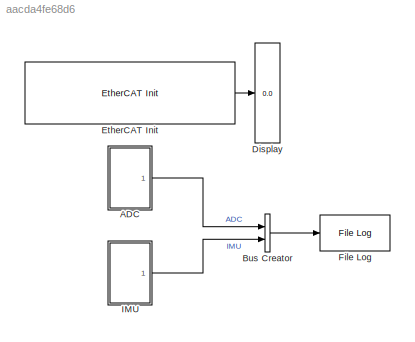
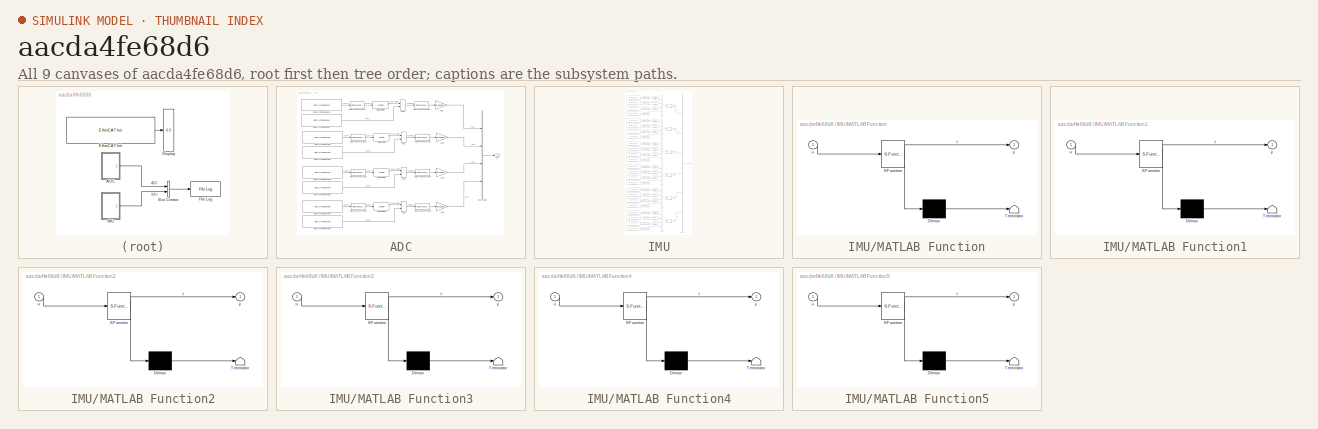
[diagram: thumbnail index - all 9 canvases of the model, root first then tree order]
MODEL slx_aacda4fe68d6
KIND model
CONFIG AbsTol = auto
CONFIG EnableMultiTasking = off
CONFIG FixedStep = Ts
CONFIG MaxStep = auto
CONFIG MinStep = auto
CONFIG RelTol = 1e-3
CONFIG SampleTimeConstraint = Unconstrained
CONFIG SolverName = FixedStepAuto
CONFIG StartTime = 0.0
CONFIG StopTime = 3660
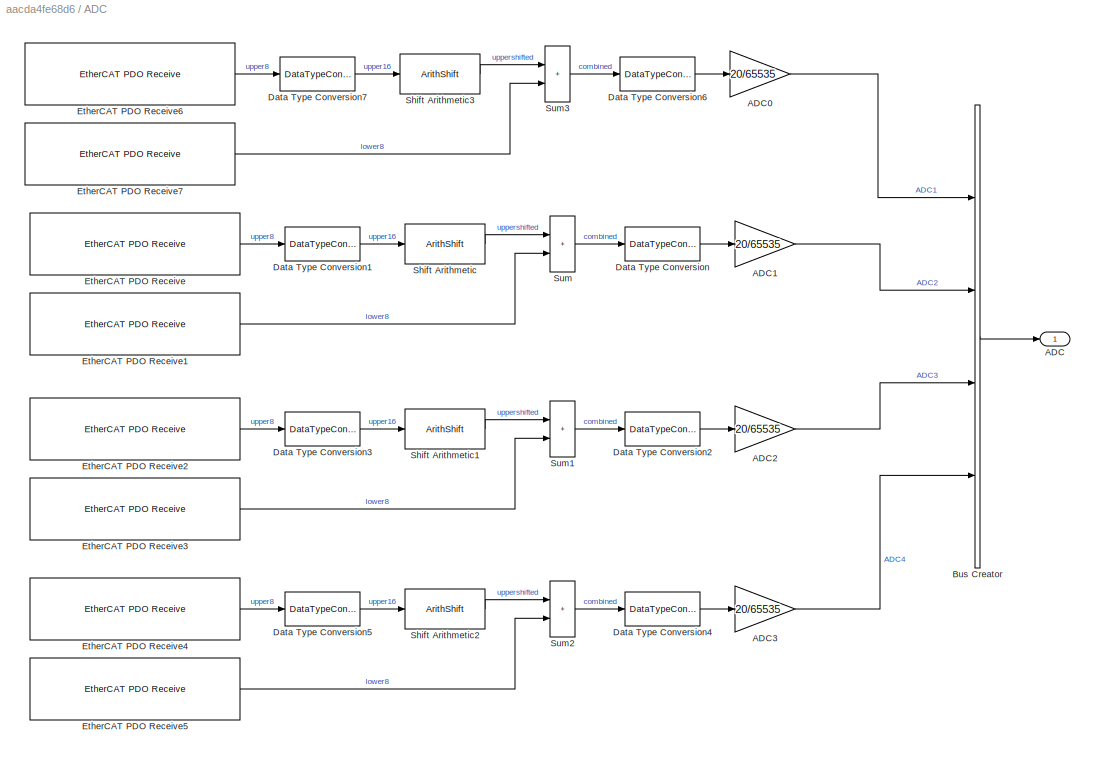
BLOCK [SubSystem] ADC
  Ports = [0, 1]
  RequestExecContextInheritance = off
BLOCK [Outport] ADC/ADC
BLOCK [Gain] ADC/ADC0
  Gain = 20/65535
  OutDataTypeStr = double
BLOCK [Gain] ADC/ADC1
  Gain = 20/65535
  OutDataTypeStr = double
BLOCK [Gain] ADC/ADC2
  Gain = 20/65535
  OutDataTypeStr = double
BLOCK [Gain] ADC/ADC3
  Gain = 20/65535
  OutDataTypeStr = double
BLOCK [BusCreator] ADC/Bus Creator
  DisplayOption = bar
  InheritFromInputs = on
  Inputs = ADC1,ADC2,ADC3,ADC4
  Ports = [4, 1]
BLOCK [DataTypeConversion] ADC/Data Type Conversion
  OutDataTypeStr = int16
  RndMeth = Floor
  SaturateOnIntegerOverflow = off
BLOCK [DataTypeConversion] ADC/Data Type Conversion1
  OutDataTypeStr = uint16
  RndMeth = Floor
  SaturateOnIntegerOverflow = off
BLOCK [DataTypeConversion] ADC/Data Type Conversion2
  OutDataTypeStr = int16
  RndMeth = Floor
  SaturateOnIntegerOverflow = off
BLOCK [DataTypeConversion] ADC/Data Type Conversion3
  OutDataTypeStr = uint16
  RndMeth = Floor
  SaturateOnIntegerOverflow = off
BLOCK [DataTypeConversion] ADC/Data Type Conversion4
  OutDataTypeStr = int16
  RndMeth = Floor
  SaturateOnIntegerOverflow = off
BLOCK [DataTypeConversion] ADC/Data Type Conversion5
  OutDataTypeStr = uint16
  RndMeth = Floor
  SaturateOnIntegerOverflow = off
BLOCK [DataTypeConversion] ADC/Data Type Conversion6
  OutDataTypeStr = int16
  RndMeth = Floor
  SaturateOnIntegerOverflow = off
BLOCK [DataTypeConversion] ADC/Data Type Conversion7
  OutDataTypeStr = uint16
  RndMeth = Floor
  SaturateOnIntegerOverflow = off
BLOCK [Reference] ADC/EtherCAT PDO Receive  REF=slrealtimeethercatlib/EtherCAT PDO Receive
  Ports = [0, 1]
  Priority = 2
  SourceBlock = slrealtimeethercatlib/EtherCAT PDO Receive
  SourceProductBaseCode = XP
  SourceType = ethercat_pdo_receive
BLOCK [Reference] ADC/EtherCAT PDO Receive1  REF=slrealtimeethercatlib/EtherCAT PDO Receive
  Ports = [0, 1]
  Priority = 2
  SourceBlock = slrealtimeethercatlib/EtherCAT PDO Receive
  SourceProductBaseCode = XP
  SourceType = ethercat_pdo_receive
BLOCK [Reference] ADC/EtherCAT PDO Receive2  REF=slrealtimeethercatlib/EtherCAT PDO Receive
  Ports = [0, 1]
  Priority = 2
  SourceBlock = slrealtimeethercatlib/EtherCAT PDO Receive
  SourceProductBaseCode = XP
  SourceType = ethercat_pdo_receive
BLOCK [Reference] ADC/EtherCAT PDO Receive3  REF=slrealtimeethercatlib/EtherCAT PDO Receive
  Ports = [0, 1]
  Priority = 2
  SourceBlock = slrealtimeethercatlib/EtherCAT PDO Receive
  SourceProductBaseCode = XP
  SourceType = ethercat_pdo_receive
BLOCK [Reference] ADC/EtherCAT PDO Receive4  REF=slrealtimeethercatlib/EtherCAT PDO Receive
  Ports = [0, 1]
  Priority = 2
  SourceBlock = slrealtimeethercatlib/EtherCAT PDO Receive
  SourceProductBaseCode = XP
  SourceType = ethercat_pdo_receive
BLOCK [Reference] ADC/EtherCAT PDO Receive5  REF=slrealtimeethercatlib/EtherCAT PDO Receive
  Ports = [0, 1]
  Priority = 2
  SourceBlock = slrealtimeethercatlib/EtherCAT PDO Receive
  SourceProductBaseCode = XP
  SourceType = ethercat_pdo_receive
BLOCK [Reference] ADC/EtherCAT PDO Receive6  REF=slrealtimeethercatlib/EtherCAT PDO Receive
  Ports = [0, 1]
  Priority = 2
  SourceBlock = slrealtimeethercatlib/EtherCAT PDO Receive
  SourceProductBaseCode = XP
  SourceType = ethercat_pdo_receive
BLOCK [Reference] ADC/EtherCAT PDO Receive7  REF=slrealtimeethercatlib/EtherCAT PDO Receive
  Ports = [0, 1]
  Priority = 2
  SourceBlock = slrealtimeethercatlib/EtherCAT PDO Receive
  SourceProductBaseCode = XP
  SourceType = ethercat_pdo_receive
BLOCK [ArithShift] ADC/Shift Arithmetic
  BitShiftDirection = Left
  BitShiftNumber = 8
  InputPortMap = u0
  Ports = [1, 1]
BLOCK [ArithShift] ADC/Shift Arithmetic1
  BitShiftDirection = Left
  BitShiftNumber = 8
  InputPortMap = u0
  Ports = [1, 1]
BLOCK [ArithShift] ADC/Shift Arithmetic2
  BitShiftDirection = Left
  BitShiftNumber = 8
  InputPortMap = u0
  Ports = [1, 1]
BLOCK [ArithShift] ADC/Shift Arithmetic3
  BitShiftDirection = Left
  BitShiftNumber = 8
  InputPortMap = u0
  Ports = [1, 1]
BLOCK [Sum] ADC/Sum
  IconShape = rectangular
  Inputs = |++
  Ports = [2, 1]
BLOCK [Sum] ADC/Sum1
  IconShape = rectangular
  Inputs = |++
  Ports = [2, 1]
BLOCK [Sum] ADC/Sum2
  IconShape = rectangular
  Inputs = |++
  Ports = [2, 1]
BLOCK [Sum] ADC/Sum3
  IconShape = rectangular
  Inputs = |++
  Ports = [2, 1]
BLOCK [BusCreator] Bus Creator
  DisplayOption = bar
  InheritFromInputs = on
  Inputs = ADC,IMU
  Ports = [2, 1]
BLOCK [Display] Display
  Decimation = 1
  Ports = [1]
BLOCK [Reference] EtherCAT Init  REF=slrealtimeethercatlib/EtherCAT Init
  Ports = [0, 1]
  Priority = 0
  SourceBlock = slrealtimeethercatlib/EtherCAT Init
  SourceProductBaseCode = XP
  SourceType = ethercatinit
BLOCK [Reference] File Log  REF=slrealtimeloglib/File Log
  Ports = [1]
  SourceBlock = slrealtimeloglib/File Log
  SourceProductBaseCode = XP
  SourceType = slrealtimeloggingblock
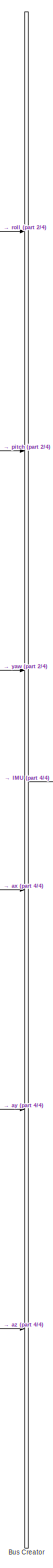
[diagram: IMU - part 1/4, right side, full height]
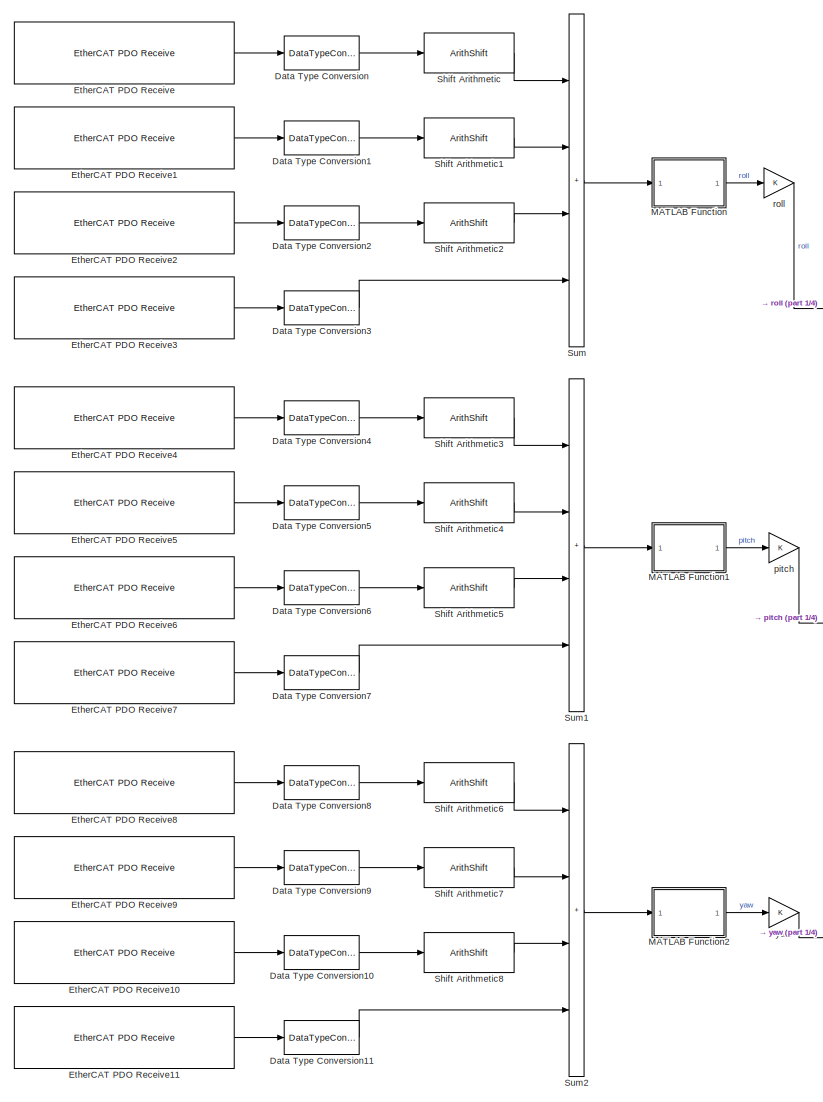
[diagram: IMU - part 2/4, full width, top band]
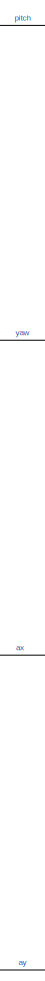
[diagram: IMU - part 3/4, middle right region]
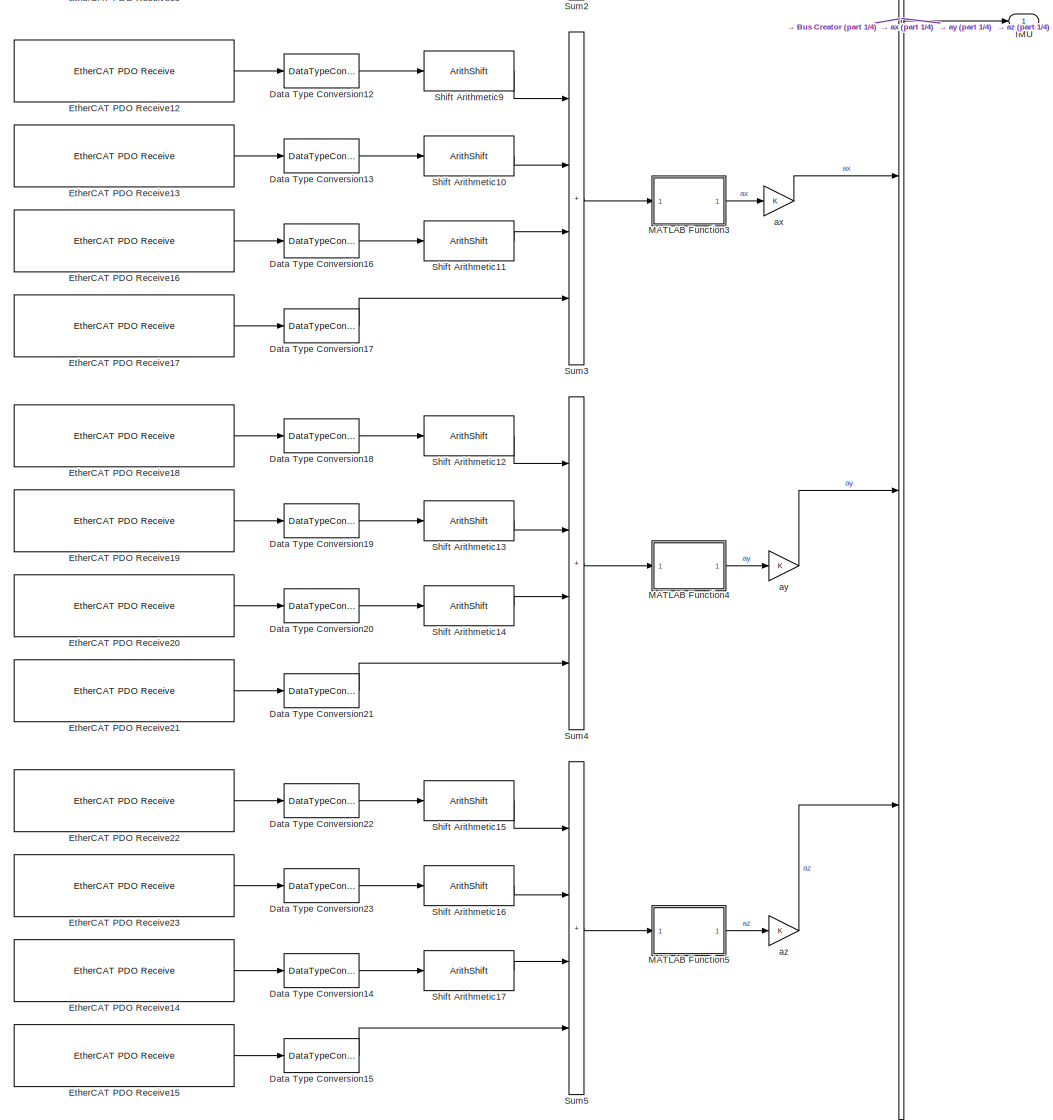
[diagram: IMU - part 4/4, full width, bottom band]
BLOCK [SubSystem] IMU
  Ports = [0, 1]
  RequestExecContextInheritance = off
BLOCK [BusCreator] IMU/Bus Creator
  DisplayOption = bar
  InheritFromInputs = on
  Inputs = roll,pitch,yaw,ax,ay,az
  Ports = [6, 1]
BLOCK [DataTypeConversion] IMU/Data Type Conversion
  OutDataTypeStr = uint32
  RndMeth = Floor
  SaturateOnIntegerOverflow = off
BLOCK [DataTypeConversion] IMU/Data Type Conversion1
  OutDataTypeStr = uint32
  RndMeth = Floor
  SaturateOnIntegerOverflow = off
BLOCK [DataTypeConversion] IMU/Data Type Conversion10
  OutDataTypeStr = uint32
  RndMeth = Floor
  SaturateOnIntegerOverflow = off
BLOCK [DataTypeConversion] IMU/Data Type Conversion11
  OutDataTypeStr = uint32
  RndMeth = Floor
  SaturateOnIntegerOverflow = off
BLOCK [DataTypeConversion] IMU/Data Type Conversion12
  OutDataTypeStr = uint32
  RndMeth = Floor
  SaturateOnIntegerOverflow = off
BLOCK [DataTypeConversion] IMU/Data Type Conversion13
  OutDataTypeStr = uint32
  RndMeth = Floor
  SaturateOnIntegerOverflow = off
BLOCK [DataTypeConversion] IMU/Data Type Conversion14
  OutDataTypeStr = uint32
  RndMeth = Floor
  SaturateOnIntegerOverflow = off
BLOCK [DataTypeConversion] IMU/Data Type Conversion15
  OutDataTypeStr = uint32
  RndMeth = Floor
  SaturateOnIntegerOverflow = off
BLOCK [DataTypeConversion] IMU/Data Type Conversion16
  OutDataTypeStr = uint32
  RndMeth = Floor
  SaturateOnIntegerOverflow = off
BLOCK [DataTypeConversion] IMU/Data Type Conversion17
  OutDataTypeStr = uint32
  RndMeth = Floor
  SaturateOnIntegerOverflow = off
BLOCK [DataTypeConversion] IMU/Data Type Conversion18
  OutDataTypeStr = uint32
  RndMeth = Floor
  SaturateOnIntegerOverflow = off
BLOCK [DataTypeConversion] IMU/Data Type Conversion19
  OutDataTypeStr = uint32
  RndMeth = Floor
  SaturateOnIntegerOverflow = off
BLOCK [DataTypeConversion] IMU/Data Type Conversion2
  OutDataTypeStr = uint32
  RndMeth = Floor
  SaturateOnIntegerOverflow = off
BLOCK [DataTypeConversion] IMU/Data Type Conversion20
  OutDataTypeStr = uint32
  RndMeth = Floor
  SaturateOnIntegerOverflow = off
BLOCK [DataTypeConversion] IMU/Data Type Conversion21
  OutDataTypeStr = uint32
  RndMeth = Floor
  SaturateOnIntegerOverflow = off
BLOCK [DataTypeConversion] IMU/Data Type Conversion22
  OutDataTypeStr = uint32
  RndMeth = Floor
  SaturateOnIntegerOverflow = off
BLOCK [DataTypeConversion] IMU/Data Type Conversion23
  OutDataTypeStr = uint32
  RndMeth = Floor
  SaturateOnIntegerOverflow = off
BLOCK [DataTypeConversion] IMU/Data Type Conversion3
  OutDataTypeStr = uint32
  RndMeth = Floor
  SaturateOnIntegerOverflow = off
BLOCK [DataTypeConversion] IMU/Data Type Conversion4
  OutDataTypeStr = uint32
  RndMeth = Floor
  SaturateOnIntegerOverflow = off
BLOCK [DataTypeConversion] IMU/Data Type Conversion5
  OutDataTypeStr = uint32
  RndMeth = Floor
  SaturateOnIntegerOverflow = off
BLOCK [DataTypeConversion] IMU/Data Type Conversion6
  OutDataTypeStr = uint32
  RndMeth = Floor
  SaturateOnIntegerOverflow = off
BLOCK [DataTypeConversion] IMU/Data Type Conversion7
  OutDataTypeStr = uint32
  RndMeth = Floor
  SaturateOnIntegerOverflow = off
BLOCK [DataTypeConversion] IMU/Data Type Conversion8
  OutDataTypeStr = uint32
  RndMeth = Floor
  SaturateOnIntegerOverflow = off
BLOCK [DataTypeConversion] IMU/Data Type Conversion9
  OutDataTypeStr = uint32
  RndMeth = Floor
  SaturateOnIntegerOverflow = off
BLOCK [Reference] IMU/EtherCAT PDO Receive  REF=slrealtimeethercatlib/EtherCAT PDO Receive
  Ports = [0, 1]
  Priority = 2
  SourceBlock = slrealtimeethercatlib/EtherCAT PDO Receive
  SourceProductBaseCode = XP
  SourceType = ethercat_pdo_receive
BLOCK [Reference] IMU/EtherCAT PDO Receive1  REF=slrealtimeethercatlib/EtherCAT PDO Receive
  Ports = [0, 1]
  Priority = 2
  SourceBlock = slrealtimeethercatlib/EtherCAT PDO Receive
  SourceProductBaseCode = XP
  SourceType = ethercat_pdo_receive
BLOCK [Reference] IMU/EtherCAT PDO Receive10  REF=slrealtimeethercatlib/EtherCAT PDO Receive
  Ports = [0, 1]
  Priority = 2
  SourceBlock = slrealtimeethercatlib/EtherCAT PDO Receive
  SourceProductBaseCode = XP
  SourceType = ethercat_pdo_receive
BLOCK [Reference] IMU/EtherCAT PDO Receive11  REF=slrealtimeethercatlib/EtherCAT PDO Receive
  Ports = [0, 1]
  Priority = 2
  SourceBlock = slrealtimeethercatlib/EtherCAT PDO Receive
  SourceProductBaseCode = XP
  SourceType = ethercat_pdo_receive
BLOCK [Reference] IMU/EtherCAT PDO Receive12  REF=slrealtimeethercatlib/EtherCAT PDO Receive
  Ports = [0, 1]
  Priority = 2
  SourceBlock = slrealtimeethercatlib/EtherCAT PDO Receive
  SourceProductBaseCode = XP
  SourceType = ethercat_pdo_receive
BLOCK [Reference] IMU/EtherCAT PDO Receive13  REF=slrealtimeethercatlib/EtherCAT PDO Receive
  Ports = [0, 1]
  Priority = 2
  SourceBlock = slrealtimeethercatlib/EtherCAT PDO Receive
  SourceProductBaseCode = XP
  SourceType = ethercat_pdo_receive
BLOCK [Reference] IMU/EtherCAT PDO Receive14  REF=slrealtimeethercatlib/EtherCAT PDO Receive
  Ports = [0, 1]
  Priority = 2
  SourceBlock = slrealtimeethercatlib/EtherCAT PDO Receive
  SourceProductBaseCode = XP
  SourceType = ethercat_pdo_receive
BLOCK [Reference] IMU/EtherCAT PDO Receive15  REF=slrealtimeethercatlib/EtherCAT PDO Receive
  Ports = [0, 1]
  Priority = 2
  SourceBlock = slrealtimeethercatlib/EtherCAT PDO Receive
  SourceProductBaseCode = XP
  SourceType = ethercat_pdo_receive
BLOCK [Reference] IMU/EtherCAT PDO Receive16  REF=slrealtimeethercatlib/EtherCAT PDO Receive
  Ports = [0, 1]
  Priority = 2
  SourceBlock = slrealtimeethercatlib/EtherCAT PDO Receive
  SourceProductBaseCode = XP
  SourceType = ethercat_pdo_receive
BLOCK [Reference] IMU/EtherCAT PDO Receive17  REF=slrealtimeethercatlib/EtherCAT PDO Receive
  Ports = [0, 1]
  Priority = 2
  SourceBlock = slrealtimeethercatlib/EtherCAT PDO Receive
  SourceProductBaseCode = XP
  SourceType = ethercat_pdo_receive
BLOCK [Reference] IMU/EtherCAT PDO Receive18  REF=slrealtimeethercatlib/EtherCAT PDO Receive
  Ports = [0, 1]
  Priority = 2
  SourceBlock = slrealtimeethercatlib/EtherCAT PDO Receive
  SourceProductBaseCode = XP
  SourceType = ethercat_pdo_receive
BLOCK [Reference] IMU/EtherCAT PDO Receive19  REF=slrealtimeethercatlib/EtherCAT PDO Receive
  Ports = [0, 1]
  Priority = 2
  SourceBlock = slrealtimeethercatlib/EtherCAT PDO Receive
  SourceProductBaseCode = XP
  SourceType = ethercat_pdo_receive
BLOCK [Reference] IMU/EtherCAT PDO Receive2  REF=slrealtimeethercatlib/EtherCAT PDO Receive
  Ports = [0, 1]
  Priority = 2
  SourceBlock = slrealtimeethercatlib/EtherCAT PDO Receive
  SourceProductBaseCode = XP
  SourceType = ethercat_pdo_receive
BLOCK [Reference] IMU/EtherCAT PDO Receive20  REF=slrealtimeethercatlib/EtherCAT PDO Receive
  Ports = [0, 1]
  Priority = 2
  SourceBlock = slrealtimeethercatlib/EtherCAT PDO Receive
  SourceProductBaseCode = XP
  SourceType = ethercat_pdo_receive
BLOCK [Reference] IMU/EtherCAT PDO Receive21  REF=slrealtimeethercatlib/EtherCAT PDO Receive
  Ports = [0, 1]
  Priority = 2
  SourceBlock = slrealtimeethercatlib/EtherCAT PDO Receive
  SourceProductBaseCode = XP
  SourceType = ethercat_pdo_receive
BLOCK [Reference] IMU/EtherCAT PDO Receive22  REF=slrealtimeethercatlib/EtherCAT PDO Receive
  Ports = [0, 1]
  Priority = 2
  SourceBlock = slrealtimeethercatlib/EtherCAT PDO Receive
  SourceProductBaseCode = XP
  SourceType = ethercat_pdo_receive
BLOCK [Reference] IMU/EtherCAT PDO Receive23  REF=slrealtimeethercatlib/EtherCAT PDO Receive
  Ports = [0, 1]
  Priority = 2
  SourceBlock = slrealtimeethercatlib/EtherCAT PDO Receive
  SourceProductBaseCode = XP
  SourceType = ethercat_pdo_receive
BLOCK [Reference] IMU/EtherCAT PDO Receive3  REF=slrealtimeethercatlib/EtherCAT PDO Receive
  Ports = [0, 1]
  Priority = 2
  SourceBlock = slrealtimeethercatlib/EtherCAT PDO Receive
  SourceProductBaseCode = XP
  SourceType = ethercat_pdo_receive
BLOCK [Reference] IMU/EtherCAT PDO Receive4  REF=slrealtimeethercatlib/EtherCAT PDO Receive
  Ports = [0, 1]
  Priority = 2
  SourceBlock = slrealtimeethercatlib/EtherCAT PDO Receive
  SourceProductBaseCode = XP
  SourceType = ethercat_pdo_receive
BLOCK [Reference] IMU/EtherCAT PDO Receive5  REF=slrealtimeethercatlib/EtherCAT PDO Receive
  Ports = [0, 1]
  Priority = 2
  SourceBlock = slrealtimeethercatlib/EtherCAT PDO Receive
  SourceProductBaseCode = XP
  SourceType = ethercat_pdo_receive
BLOCK [Reference] IMU/EtherCAT PDO Receive6  REF=slrealtimeethercatlib/EtherCAT PDO Receive
  Ports = [0, 1]
  Priority = 2
  SourceBlock = slrealtimeethercatlib/EtherCAT PDO Receive
  SourceProductBaseCode = XP
  SourceType = ethercat_pdo_receive
BLOCK [Reference] IMU/EtherCAT PDO Receive7  REF=slrealtimeethercatlib/EtherCAT PDO Receive
  Ports = [0, 1]
  Priority = 2
  SourceBlock = slrealtimeethercatlib/EtherCAT PDO Receive
  SourceProductBaseCode = XP
  SourceType = ethercat_pdo_receive
BLOCK [Reference] IMU/EtherCAT PDO Receive8  REF=slrealtimeethercatlib/EtherCAT PDO Receive
  Ports = [0, 1]
  Priority = 2
  SourceBlock = slrealtimeethercatlib/EtherCAT PDO Receive
  SourceProductBaseCode = XP
  SourceType = ethercat_pdo_receive
BLOCK [Reference] IMU/EtherCAT PDO Receive9  REF=slrealtimeethercatlib/EtherCAT PDO Receive
  Ports = [0, 1]
  Priority = 2
  SourceBlock = slrealtimeethercatlib/EtherCAT PDO Receive
  SourceProductBaseCode = XP
  SourceType = ethercat_pdo_receive
BLOCK [Outport] IMU/IMU
BLOCK [SubSystem] IMU/MATLAB Function
  ErrorFcn = Stateflow.Translate.translate
  PermitHierarchicalResolution = ExplicitOnly
  Ports = [1, 1]
  RequestExecContextInheritance = off
  SFBlockType = MATLAB Function
  TreatAsAtomicUnit = on
BLOCK [Demux] IMU/MATLAB Function/ Demux 
  Outputs = 1
  Ports = [1, 1]
BLOCK [S-Function] IMU/MATLAB Function/ SFunction 
  EnableBusSupport = on
  FunctionName = sf_sfun
  PortCounts = [1 2]
  Ports = [1, 2]
  SFcnIsStateOwnerBlock = off
  SFunctionDeploymentMode = off
  Tag = Stateflow S-Function 2
BLOCK [Terminator] IMU/MATLAB Function/ Terminator 
BLOCK [Inport] IMU/MATLAB Function/u
BLOCK [Outport] IMU/MATLAB Function/y
BLOCK [SubSystem] IMU/MATLAB Function1
  ErrorFcn = Stateflow.Translate.translate
  PermitHierarchicalResolution = ExplicitOnly
  Ports = [1, 1]
  RequestExecContextInheritance = off
  SFBlockType = MATLAB Function
  TreatAsAtomicUnit = on
BLOCK [Demux] IMU/MATLAB Function1/ Demux 
  Outputs = 1
  Ports = [1, 1]
BLOCK [S-Function] IMU/MATLAB Function1/ SFunction 
  EnableBusSupport = on
  FunctionName = sf_sfun
  PortCounts = [1 2]
  Ports = [1, 2]
  SFcnIsStateOwnerBlock = off
  SFunctionDeploymentMode = off
  Tag = Stateflow S-Function 1
BLOCK [Terminator] IMU/MATLAB Function1/ Terminator 
BLOCK [Inport] IMU/MATLAB Function1/u
BLOCK [Outport] IMU/MATLAB Function1/y
BLOCK [SubSystem] IMU/MATLAB Function2
  ErrorFcn = Stateflow.Translate.translate
  PermitHierarchicalResolution = ExplicitOnly
  Ports = [1, 1]
  RequestExecContextInheritance = off
  SFBlockType = MATLAB Function
  TreatAsAtomicUnit = on
BLOCK [Demux] IMU/MATLAB Function2/ Demux 
  Outputs = 1
  Ports = [1, 1]
BLOCK [S-Function] IMU/MATLAB Function2/ SFunction 
  EnableBusSupport = on
  FunctionName = sf_sfun
  PortCounts = [1 2]
  Ports = [1, 2]
  SFcnIsStateOwnerBlock = off
  SFunctionDeploymentMode = off
  Tag = Stateflow S-Function 3
BLOCK [Terminator] IMU/MATLAB Function2/ Terminator 
BLOCK [Inport] IMU/MATLAB Function2/u
BLOCK [Outport] IMU/MATLAB Function2/y
BLOCK [SubSystem] IMU/MATLAB Function3
  ErrorFcn = Stateflow.Translate.translate
  PermitHierarchicalResolution = ExplicitOnly
  Ports = [1, 1]
  RequestExecContextInheritance = off
  SFBlockType = MATLAB Function
  TreatAsAtomicUnit = on
BLOCK [Demux] IMU/MATLAB Function3/ Demux 
  Outputs = 1
  Ports = [1, 1]
BLOCK [S-Function] IMU/MATLAB Function3/ SFunction 
  EnableBusSupport = on
  FunctionName = sf_sfun
  PortCounts = [1 2]
  Ports = [1, 2]
  SFcnIsStateOwnerBlock = off
  SFunctionDeploymentMode = off
  Tag = Stateflow S-Function 4
BLOCK [Terminator] IMU/MATLAB Function3/ Terminator 
BLOCK [Inport] IMU/MATLAB Function3/u
BLOCK [Outport] IMU/MATLAB Function3/y
BLOCK [SubSystem] IMU/MATLAB Function4
  ErrorFcn = Stateflow.Translate.translate
  PermitHierarchicalResolution = ExplicitOnly
  Ports = [1, 1]
  RequestExecContextInheritance = off
  SFBlockType = MATLAB Function
  TreatAsAtomicUnit = on
BLOCK [Demux] IMU/MATLAB Function4/ Demux 
  Outputs = 1
  Ports = [1, 1]
BLOCK [S-Function] IMU/MATLAB Function4/ SFunction 
  EnableBusSupport = on
  FunctionName = sf_sfun
  PortCounts = [1 2]
  Ports = [1, 2]
  SFcnIsStateOwnerBlock = off
  SFunctionDeploymentMode = off
  Tag = Stateflow S-Function 5
BLOCK [Terminator] IMU/MATLAB Function4/ Terminator 
BLOCK [Inport] IMU/MATLAB Function4/u
BLOCK [Outport] IMU/MATLAB Function4/y
BLOCK [SubSystem] IMU/MATLAB Function5
  ErrorFcn = Stateflow.Translate.translate
  PermitHierarchicalResolution = ExplicitOnly
  Ports = [1, 1]
  RequestExecContextInheritance = off
  SFBlockType = MATLAB Function
  TreatAsAtomicUnit = on
BLOCK [Demux] IMU/MATLAB Function5/ Demux 
  Outputs = 1
  Ports = [1, 1]
BLOCK [S-Function] IMU/MATLAB Function5/ SFunction 
  EnableBusSupport = on
  FunctionName = sf_sfun
  PortCounts = [1 2]
  Ports = [1, 2]
  SFcnIsStateOwnerBlock = off
  SFunctionDeploymentMode = off
  Tag = Stateflow S-Function 6
BLOCK [Terminator] IMU/MATLAB Function5/ Terminator 
BLOCK [Inport] IMU/MATLAB Function5/u
BLOCK [Outport] IMU/MATLAB Function5/y
BLOCK [ArithShift] IMU/Shift Arithmetic
  BitShiftDirection = Left
  BitShiftNumber = 24
  InputPortMap = u0
  Ports = [1, 1]
BLOCK [ArithShift] IMU/Shift Arithmetic1
  BitShiftDirection = Left
  BitShiftNumber = 16
  InputPortMap = u0
  Ports = [1, 1]
BLOCK [ArithShift] IMU/Shift Arithmetic10
  BitShiftDirection = Left
  BitShiftNumber = 16
  InputPortMap = u0
  Ports = [1, 1]
BLOCK [ArithShift] IMU/Shift Arithmetic11
  BitShiftDirection = Left
  BitShiftNumber = 8
  InputPortMap = u0
  Ports = [1, 1]
BLOCK [ArithShift] IMU/Shift Arithmetic12
  BitShiftDirection = Left
  BitShiftNumber = 24
  InputPortMap = u0
  Ports = [1, 1]
BLOCK [ArithShift] IMU/Shift Arithmetic13
  BitShiftDirection = Left
  BitShiftNumber = 16
  InputPortMap = u0
  Ports = [1, 1]
BLOCK [ArithShift] IMU/Shift Arithmetic14
  BitShiftDirection = Left
  BitShiftNumber = 8
  InputPortMap = u0
  Ports = [1, 1]
BLOCK [ArithShift] IMU/Shift Arithmetic15
  BitShiftDirection = Left
  BitShiftNumber = 24
  InputPortMap = u0
  Ports = [1, 1]
BLOCK [ArithShift] IMU/Shift Arithmetic16
  BitShiftDirection = Left
  BitShiftNumber = 16
  InputPortMap = u0
  Ports = [1, 1]
BLOCK [ArithShift] IMU/Shift Arithmetic17
  BitShiftDirection = Left
  BitShiftNumber = 8
  InputPortMap = u0
  Ports = [1, 1]
BLOCK [ArithShift] IMU/Shift Arithmetic2
  BitShiftDirection = Left
  BitShiftNumber = 8
  InputPortMap = u0
  Ports = [1, 1]
BLOCK [ArithShift] IMU/Shift Arithmetic3
  BitShiftDirection = Left
  BitShiftNumber = 24
  InputPortMap = u0
  Ports = [1, 1]
BLOCK [ArithShift] IMU/Shift Arithmetic4
  BitShiftDirection = Left
  BitShiftNumber = 16
  InputPortMap = u0
  Ports = [1, 1]
BLOCK [ArithShift] IMU/Shift Arithmetic5
  BitShiftDirection = Left
  BitShiftNumber = 8
  InputPortMap = u0
  Ports = [1, 1]
BLOCK [ArithShift] IMU/Shift Arithmetic6
  BitShiftDirection = Left
  BitShiftNumber = 24
  InputPortMap = u0
  Ports = [1, 1]
BLOCK [ArithShift] IMU/Shift Arithmetic7
  BitShiftDirection = Left
  BitShiftNumber = 16
  InputPortMap = u0
  Ports = [1, 1]
BLOCK [ArithShift] IMU/Shift Arithmetic8
  BitShiftDirection = Left
  BitShiftNumber = 8
  InputPortMap = u0
  Ports = [1, 1]
BLOCK [ArithShift] IMU/Shift Arithmetic9
  BitShiftDirection = Left
  BitShiftNumber = 24
  InputPortMap = u0
  Ports = [1, 1]
BLOCK [Sum] IMU/Sum
  IconShape = rectangular
  Inputs = ++++
  Ports = [4, 1]
BLOCK [Sum] IMU/Sum1
  IconShape = rectangular
  Inputs = ++++
  Ports = [4, 1]
BLOCK [Sum] IMU/Sum2
  IconShape = rectangular
  Inputs = ++++
  Ports = [4, 1]
BLOCK [Sum] IMU/Sum3
  IconShape = rectangular
  Inputs = ++++
  Ports = [4, 1]
BLOCK [Sum] IMU/Sum4
  IconShape = rectangular
  Inputs = ++++
  Ports = [4, 1]
BLOCK [Sum] IMU/Sum5
  IconShape = rectangular
  Inputs = ++++
  Ports = [4, 1]
BLOCK [Gain] IMU/ax
  OutDataTypeStr = double
BLOCK [Gain] IMU/ay
  OutDataTypeStr = double
BLOCK [Gain] IMU/az
  OutDataTypeStr = double
BLOCK [Gain] IMU/pitch
  OutDataTypeStr = double
BLOCK [Gain] IMU/roll
  OutDataTypeStr = double
BLOCK [Gain] IMU/yaw
  OutDataTypeStr = double
LINE ADC/ADC0:1 -> ADC/Bus Creator:1
LINE ADC/ADC1:1 -> ADC/Bus Creator:2
LINE ADC/ADC2:1 -> ADC/Bus Creator:3
LINE ADC/ADC3:1 -> ADC/Bus Creator:4
LINE ADC/Bus Creator:1 -> ADC/ADC:1
LINE ADC/Data Type Conversion1:1 -> ADC/Shift Arithmetic:1
LINE ADC/Data Type Conversion2:1 -> ADC/ADC2:1
LINE ADC/Data Type Conversion3:1 -> ADC/Shift Arithmetic1:1
LINE ADC/Data Type Conversion4:1 -> ADC/ADC3:1
LINE ADC/Data Type Conversion5:1 -> ADC/Shift Arithmetic2:1
LINE ADC/Data Type Conversion6:1 -> ADC/ADC0:1
LINE ADC/Data Type Conversion7:1 -> ADC/Shift Arithmetic3:1
LINE ADC/Data Type Conversion:1 -> ADC/ADC1:1
LINE ADC/EtherCAT PDO Receive1:1 -> ADC/Sum:2
LINE ADC/EtherCAT PDO Receive2:1 -> ADC/Data Type Conversion3:1
LINE ADC/EtherCAT PDO Receive3:1 -> ADC/Sum1:2
LINE ADC/EtherCAT PDO Receive4:1 -> ADC/Data Type Conversion5:1
LINE ADC/EtherCAT PDO Receive5:1 -> ADC/Sum2:2
LINE ADC/EtherCAT PDO Receive6:1 -> ADC/Data Type Conversion7:1
LINE ADC/EtherCAT PDO Receive7:1 -> ADC/Sum3:2
LINE ADC/EtherCAT PDO Receive:1 -> ADC/Data Type Conversion1:1
LINE ADC/Shift Arithmetic1:1 -> ADC/Sum1:1
LINE ADC/Shift Arithmetic2:1 -> ADC/Sum2:1
LINE ADC/Shift Arithmetic3:1 -> ADC/Sum3:1
LINE ADC/Shift Arithmetic:1 -> ADC/Sum:1
LINE ADC/Sum1:1 -> ADC/Data Type Conversion2:1
LINE ADC/Sum2:1 -> ADC/Data Type Conversion4:1
LINE ADC/Sum3:1 -> ADC/Data Type Conversion6:1
LINE ADC/Sum:1 -> ADC/Data Type Conversion:1
LINE ADC:1 -> Bus Creator:1
LINE Bus Creator:1 -> File Log:1
LINE EtherCAT Init:1 -> Display:1
LINE IMU/Bus Creator:1 -> IMU/IMU:1
LINE IMU/Data Type Conversion10:1 -> IMU/Shift Arithmetic8:1
LINE IMU/Data Type Conversion11:1 -> IMU/Sum2:4
LINE IMU/Data Type Conversion12:1 -> IMU/Shift Arithmetic9:1
LINE IMU/Data Type Conversion13:1 -> IMU/Shift Arithmetic10:1
LINE IMU/Data Type Conversion14:1 -> IMU/Shift Arithmetic17:1
LINE IMU/Data Type Conversion15:1 -> IMU/Sum5:4
LINE IMU/Data Type Conversion16:1 -> IMU/Shift Arithmetic11:1
LINE IMU/Data Type Conversion17:1 -> IMU/Sum3:4
LINE IMU/Data Type Conversion18:1 -> IMU/Shift Arithmetic12:1
LINE IMU/Data Type Conversion19:1 -> IMU/Shift Arithmetic13:1
LINE IMU/Data Type Conversion1:1 -> IMU/Shift Arithmetic1:1
LINE IMU/Data Type Conversion20:1 -> IMU/Shift Arithmetic14:1
LINE IMU/Data Type Conversion21:1 -> IMU/Sum4:4
LINE IMU/Data Type Conversion22:1 -> IMU/Shift Arithmetic15:1
LINE IMU/Data Type Conversion23:1 -> IMU/Shift Arithmetic16:1
LINE IMU/Data Type Conversion2:1 -> IMU/Shift Arithmetic2:1
LINE IMU/Data Type Conversion3:1 -> IMU/Sum:4
LINE IMU/Data Type Conversion4:1 -> IMU/Shift Arithmetic3:1
LINE IMU/Data Type Conversion5:1 -> IMU/Shift Arithmetic4:1
LINE IMU/Data Type Conversion6:1 -> IMU/Shift Arithmetic5:1
LINE IMU/Data Type Conversion7:1 -> IMU/Sum1:4
LINE IMU/Data Type Conversion8:1 -> IMU/Shift Arithmetic6:1
LINE IMU/Data Type Conversion9:1 -> IMU/Shift Arithmetic7:1
LINE IMU/Data Type Conversion:1 -> IMU/Shift Arithmetic:1
LINE IMU/EtherCAT PDO Receive10:1 -> IMU/Data Type Conversion10:1
LINE IMU/EtherCAT PDO Receive11:1 -> IMU/Data Type Conversion11:1
LINE IMU/EtherCAT PDO Receive12:1 -> IMU/Data Type Conversion12:1
LINE IMU/EtherCAT PDO Receive13:1 -> IMU/Data Type Conversion13:1
LINE IMU/EtherCAT PDO Receive14:1 -> IMU/Data Type Conversion14:1
LINE IMU/EtherCAT PDO Receive15:1 -> IMU/Data Type Conversion15:1
LINE IMU/EtherCAT PDO Receive16:1 -> IMU/Data Type Conversion16:1
LINE IMU/EtherCAT PDO Receive17:1 -> IMU/Data Type Conversion17:1
LINE IMU/EtherCAT PDO Receive18:1 -> IMU/Data Type Conversion18:1
LINE IMU/EtherCAT PDO Receive19:1 -> IMU/Data Type Conversion19:1
LINE IMU/EtherCAT PDO Receive1:1 -> IMU/Data Type Conversion1:1
LINE IMU/EtherCAT PDO Receive20:1 -> IMU/Data Type Conversion20:1
LINE IMU/EtherCAT PDO Receive21:1 -> IMU/Data Type Conversion21:1
LINE IMU/EtherCAT PDO Receive22:1 -> IMU/Data Type Conversion22:1
LINE IMU/EtherCAT PDO Receive23:1 -> IMU/Data Type Conversion23:1
LINE IMU/EtherCAT PDO Receive2:1 -> IMU/Data Type Conversion2:1
LINE IMU/EtherCAT PDO Receive3:1 -> IMU/Data Type Conversion3:1
LINE IMU/EtherCAT PDO Receive4:1 -> IMU/Data Type Conversion4:1
LINE IMU/EtherCAT PDO Receive5:1 -> IMU/Data Type Conversion5:1
LINE IMU/EtherCAT PDO Receive6:1 -> IMU/Data Type Conversion6:1
LINE IMU/EtherCAT PDO Receive7:1 -> IMU/Data Type Conversion7:1
LINE IMU/EtherCAT PDO Receive8:1 -> IMU/Data Type Conversion8:1
LINE IMU/EtherCAT PDO Receive9:1 -> IMU/Data Type Conversion9:1
LINE IMU/EtherCAT PDO Receive:1 -> IMU/Data Type Conversion:1
LINE IMU/MATLAB Function1:1 -> IMU/pitch:1
LINE IMU/MATLAB Function2:1 -> IMU/yaw:1
LINE IMU/MATLAB Function3:1 -> IMU/ax:1
LINE IMU/MATLAB Function4:1 -> IMU/ay:1
LINE IMU/MATLAB Function5:1 -> IMU/az:1
LINE IMU/MATLAB Function:1 -> IMU/roll:1
LINE IMU/Shift Arithmetic10:1 -> IMU/Sum3:2
LINE IMU/Shift Arithmetic11:1 -> IMU/Sum3:3
LINE IMU/Shift Arithmetic12:1 -> IMU/Sum4:1
LINE IMU/Shift Arithmetic13:1 -> IMU/Sum4:2
LINE IMU/Shift Arithmetic14:1 -> IMU/Sum4:3
LINE IMU/Shift Arithmetic15:1 -> IMU/Sum5:1
LINE IMU/Shift Arithmetic16:1 -> IMU/Sum5:2
LINE IMU/Shift Arithmetic17:1 -> IMU/Sum5:3
LINE IMU/Shift Arithmetic1:1 -> IMU/Sum:2
LINE IMU/Shift Arithmetic2:1 -> IMU/Sum:3
LINE IMU/Shift Arithmetic3:1 -> IMU/Sum1:1
LINE IMU/Shift Arithmetic4:1 -> IMU/Sum1:2
LINE IMU/Shift Arithmetic5:1 -> IMU/Sum1:3
LINE IMU/Shift Arithmetic6:1 -> IMU/Sum2:1
LINE IMU/Shift Arithmetic7:1 -> IMU/Sum2:2
LINE IMU/Shift Arithmetic8:1 -> IMU/Sum2:3
LINE IMU/Shift Arithmetic9:1 -> IMU/Sum3:1
LINE IMU/Shift Arithmetic:1 -> IMU/Sum:1
LINE IMU/Sum1:1 -> IMU/MATLAB Function1:1
LINE IMU/Sum2:1 -> IMU/MATLAB Function2:1
LINE IMU/Sum3:1 -> IMU/MATLAB Function3:1
LINE IMU/Sum4:1 -> IMU/MATLAB Function4:1
LINE IMU/Sum5:1 -> IMU/MATLAB Function5:1
LINE IMU/Sum:1 -> IMU/MATLAB Function:1
LINE IMU/ax:1 -> IMU/Bus Creator:4
LINE IMU/ay:1 -> IMU/Bus Creator:5
LINE IMU/az:1 -> IMU/Bus Creator:6
LINE IMU/pitch:1 -> IMU/Bus Creator:2
LINE IMU/roll:1 -> IMU/Bus Creator:1
LINE IMU/yaw:1 -> IMU/Bus Creator:3
LINE IMU:1 -> Bus Creator:2
CHART IMU/MATLAB Function states=1 transitions=1
  STATE_LABEL 'eML_blk_kernel()'
  STATE_LABEL "SCRIPT:\nfunction y = fcn(u)\ny = typecast(u,'single');\n"
CHART IMU/MATLAB Function2 states=1 transitions=1
  STATE_LABEL 'eML_blk_kernel()'
  STATE_LABEL "SCRIPT:\nfunction y = fcn(u)\ny = typecast(u,'single');\n"
CHART IMU/MATLAB Function3 states=1 transitions=1
  STATE_LABEL 'eML_blk_kernel()'
  STATE_LABEL "SCRIPT:\nfunction y = fcn(u)\ny = typecast(u,'single');\n"
CHART IMU/MATLAB Function4 states=1 transitions=1
  STATE_LABEL 'eML_blk_kernel()'
  STATE_LABEL "SCRIPT:\nfunction y = fcn(u)\ny = typecast(u,'single');\n"
CHART IMU/MATLAB Function5 states=1 transitions=1
  STATE_LABEL 'eML_blk_kernel()'
  STATE_LABEL "SCRIPT:\nfunction y = fcn(u)\ny = typecast(u,'single');\n"
CHART IMU/MATLAB Function1 states=1 transitions=1
  STATE_LABEL 'eML_blk_kernel()'
  STATE_LABEL "SCRIPT:\nfunction y = fcn(u)\ny = typecast(u,'single');\n"
CHART  states=0 transitions=0
CHART  states=0 transitions=0
CHART  states=0 transitions=0
CHART  states=0 transitions=0
CHART  states=0 transitions=0
CHART  states=0 transitions=0
